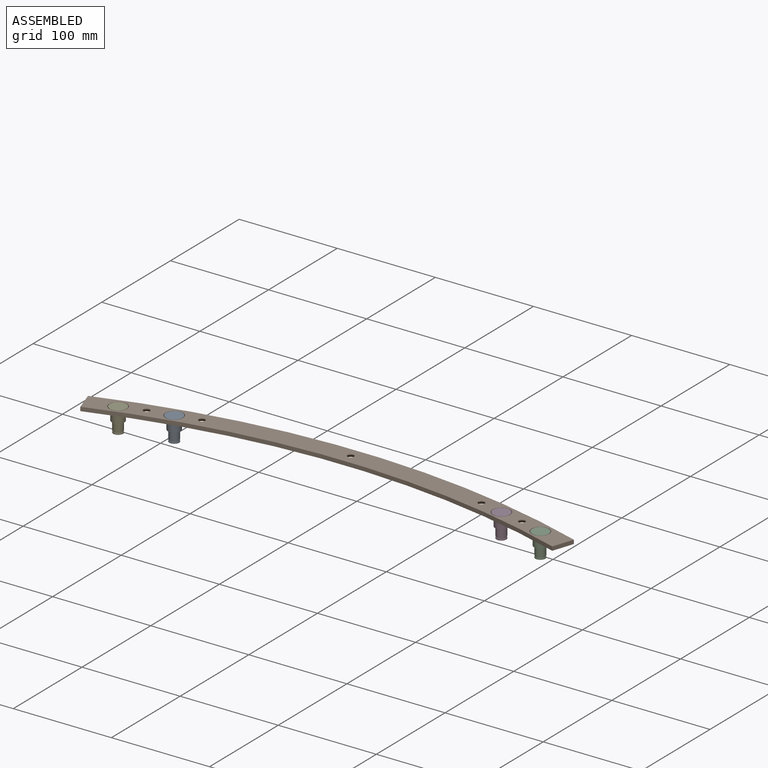
[diagram: assembled view]
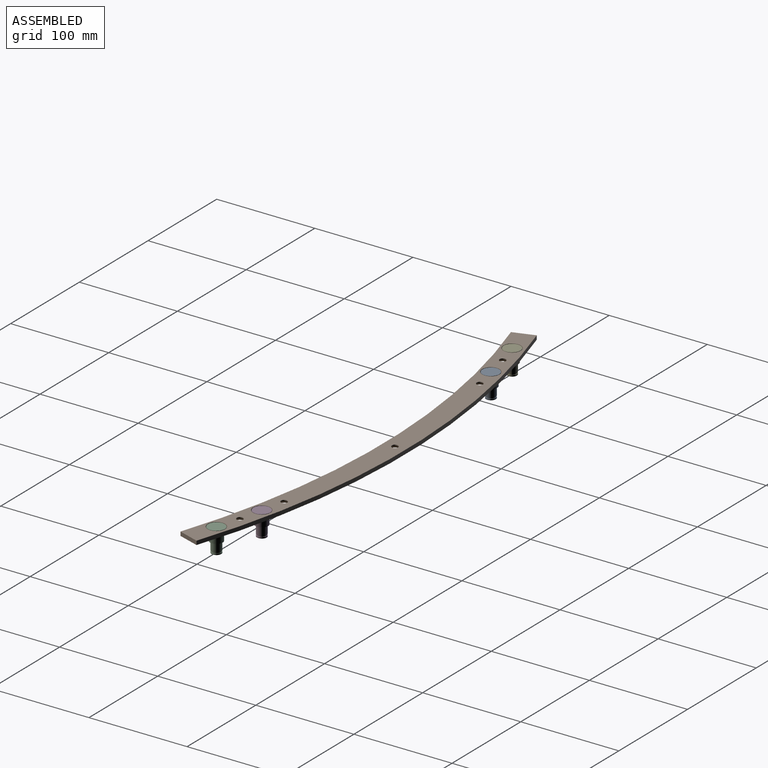
[diagram: assembled view, second angle]
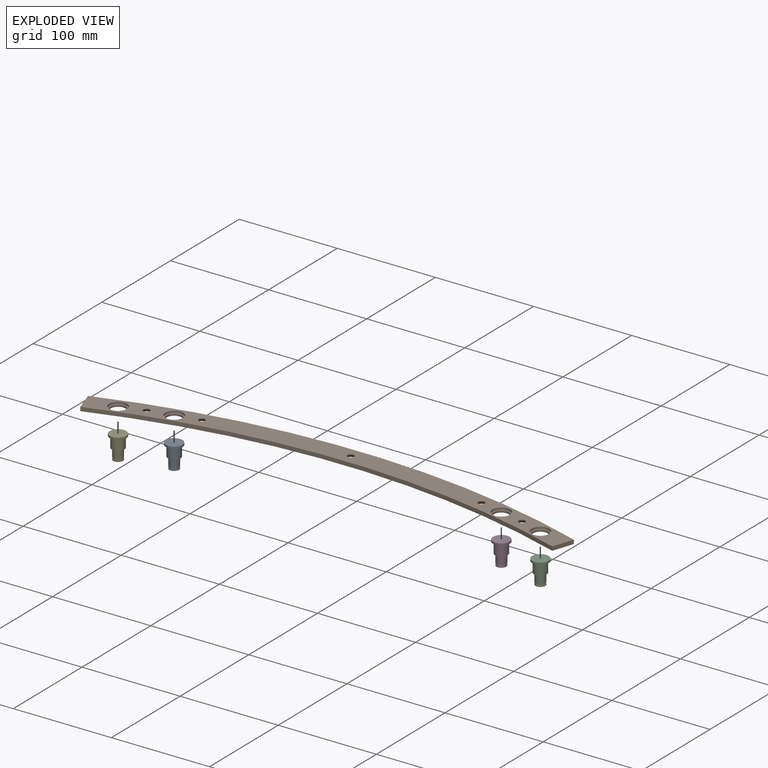
[diagram: exploded view]
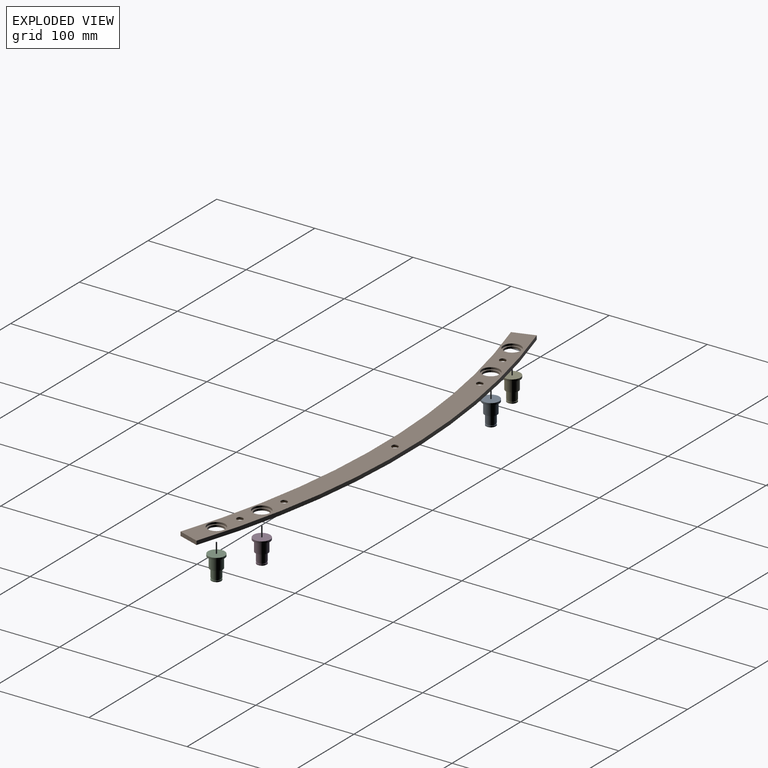
[diagram: exploded view, second angle]
ASSEMBLY  parts=5 mates=4
PART A: 11 faces, bbox 17x17x24 mm
  f0: plane 17x17mm, normal (0,0,-1), area 94.2mm2, adj f1,f10
  f1: cylinder r=8.5mm len=17mm, axis (0,0,-1), area 106.8mm2, adj f0,f2
  f2: plane 17x17mm, normal (0,0,1), area 227mm2, adj f1
  f3: plane 9.96x9.96mm, normal (0,0,-1), area 77.9mm2, adj f4
  f4: cylinder r=4.98mm len=9.96mm, axis (0,0,-1), area 40.7mm2, adj f3,f5
  f5: plane 9.96x9.96mm, normal (0,0,1), area 14.3mm2, adj f4,f6
  f6: cylinder r=4.5mm len=9mm, axis (0,0,-1), area 33.9mm2, adj f5,f7
  f7: plane 9.96x9.96mm, normal (0,0,-1), area 14.3mm2, adj f6,f8
  f8: cylinder r=4.98mm len=9.96mm, axis (0,0,-1), area 266mm2, adj f7,f9
  f9: plane 13x13mm, normal (0,0,-1), area 54.8mm2, adj f8,f10
  f10: cylinder r=6.5mm len=13mm, axis (0,0,-1), area 449.2mm2, adj f0,f9
PART B: 28 faces, bbox 495.3x61.5x4 mm
  f0: plane 495.25x61.46mm, normal (0,0,-1), area 9785mm2, adj f1,f3,f4,f5,f7,f9,f11,f13
  f1: cylinder r=784.5mm len=495.25mm, axis (0,0,-1), area 2015.5mm2, adj f0,f2,f4,f5
  f2: plane 495.25x61.46mm, normal (0,0,1), area 9990.7mm2, adj f1,f3,f4,f5,f6,f8,f10,f12
  f3: cylinder r=762mm len=481.05mm, axis (0,0,-1), area 1957.7mm2, adj f0,f2,f4,f5
  f4: plane 21.35x7.1mm, normal (-0.95,-0.32,0), area 90mm2, adj f0,f1,f2,f3
  f5: plane 21.35x7.1mm, normal (0.95,-0.32,0), area 90mm2, adj f0,f1,f2,f3
  f6: cylinder r=3.25mm len=6.5mm, axis (0,0,-1), area 15.3mm2, adj f2,f7
  f7: cone r=3.25mm half-angle=45deg, axis (0,0,-1), area 140.8mm2, adj f0,f6
  f8: cylinder r=3.25mm len=6.5mm, axis (0,0,-1), area 15.3mm2, adj f2,f9
  f9: cone r=3.25mm half-angle=45deg, axis (0,0,-1), area 140.8mm2, adj f0,f8
  f10: cylinder r=3.25mm len=6.5mm, axis (0,0,-1), area 15.3mm2, adj f2,f11
  f11: cone r=3.25mm half-angle=45deg, axis (0,0,-1), area 140.8mm2, adj f0,f10
  f12: cylinder r=3.25mm len=6.5mm, axis (0,0,-1), area 15.3mm2, adj f2,f13
  f13: cone r=3.25mm half-angle=45deg, axis (0,0,-1), area 140.8mm2, adj f0,f12
  f14: cylinder r=3.25mm len=6.5mm, axis (0,0,-1), area 15.3mm2, adj f2,f15
  f15: cone r=3.25mm half-angle=45deg, axis (0,0,-1), area 140.8mm2, adj f0,f14
  f16: cylinder r=7.6mm len=15.2mm, axis (0,0,1), area 95.5mm2, adj f0,f17
  f17: plane 18x18mm, normal (0,0,1), area 73mm2, adj f16,f18
  f18: cylinder r=9mm len=18mm, axis (0,0,1), area 113.1mm2, adj f2,f17
  f19: cylinder r=7.6mm len=15.2mm, axis (0,0,1), area 95.5mm2, adj f0,f20
  f20: plane 18x18mm, normal (0,0,1), area 73mm2, adj f19,f21
  f21: cylinder r=9mm len=18mm, axis (0,0,1), area 113.1mm2, adj f2,f20
  f22: cylinder r=7.6mm len=15.2mm, axis (0,0,1), area 95.5mm2, adj f0,f23
  f23: plane 18x18mm, normal (0,0,1), area 73mm2, adj f22,f24
  f24: cylinder r=9mm len=18mm, axis (0,0,1), area 113.1mm2, adj f2,f23
  f25: cylinder r=7.6mm len=15.2mm, axis (0,0,1), area 95.5mm2, adj f0,f26
  f26: plane 18x18mm, normal (0,0,1), area 73mm2, adj f25,f27
  f27: cylinder r=9mm len=18mm, axis (0,0,1), area 113.1mm2, adj f2,f26
PART C: same geometry as A
PART D: same geometry as A
PART E: same geometry as A
PLACE A t=(-52.86,152.54,261.74)mm
PLACE B t=(113.84,-601.76,281.74)mm
PLACE C t=(329.02,140.16,261.74)mm
PLACE D t=(280.6,152.52,261.74)mm
PLACE E t=(-101.35,140.16,261.74)mm
MATE fastened C.f1 <-> B.f22  axis (0,0,-1) through (329.02,140.16,283.74)mm
MATE fastened B.f19 <-> A.f1  axis (0,0,1) through (-52.86,152.54,283.74)mm
MATE fastened D.f1 <-> B.f25  axis (0,0,-1) through (280.6,152.52,283.74)mm
MATE fastened B.f16 <-> E.f1  axis (0,0,1) through (-101.35,140.16,283.74)mm
